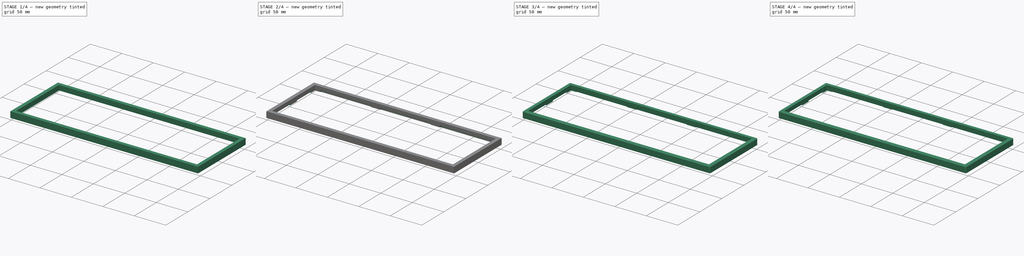
[diagram: build sequence overview — one tinted view per stage of 4, left to right]
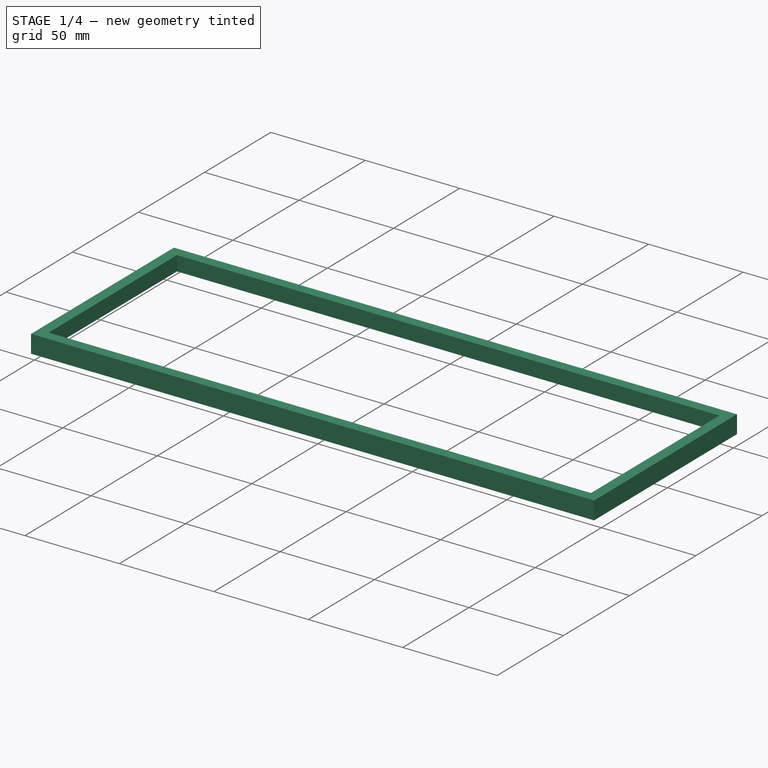
[diagram: stage 1 of 4 — iso view after this stage's code; geometry added in this stage tinted green]
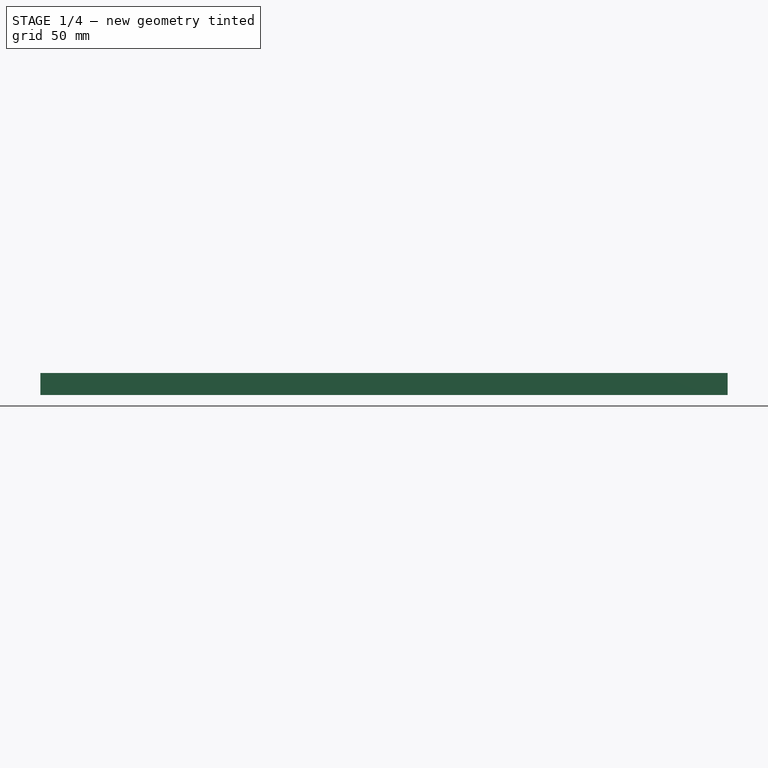
[diagram: stage 1 of 4 — front view after this stage's code; geometry added in this stage tinted green]
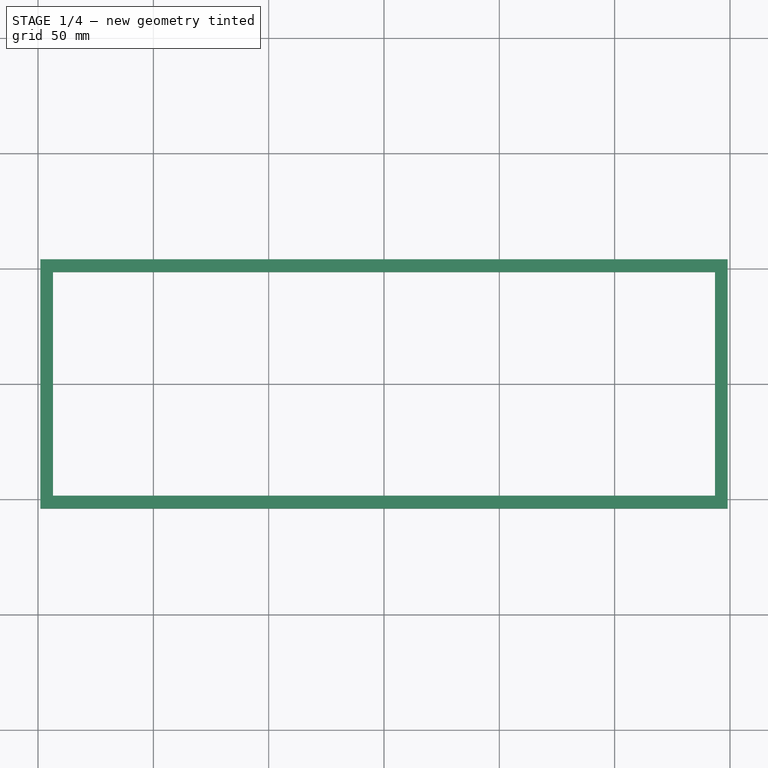
[diagram: stage 1 of 4 — top view after this stage's code; geometry added in this stage tinted green]
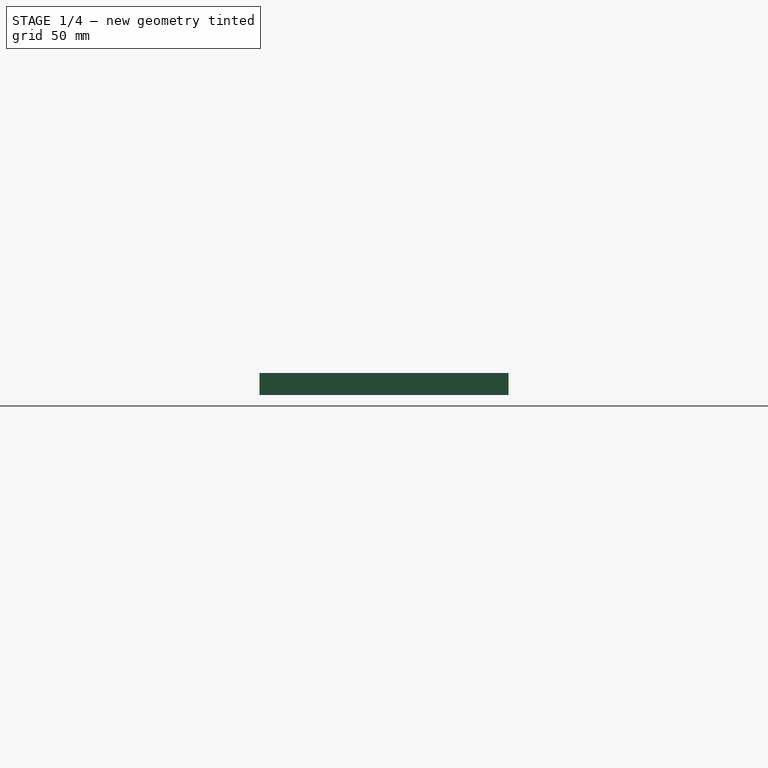
[diagram: stage 1 of 4 — right view after this stage's code; geometry added in this stage tinted green]
FCSTD DOCUMENT  (FreeCAD 0.19R)
Label: jykb60_gasket_top_v4
License: All rights reserved
LicenseURL: http://en.wikipedia.org/wiki/All_rights_reserved
objects: Sketcher::SketchObject×5, PartDesign::Fillet×5, PartDesign::Pocket×3, PartDesign::Pad×1, PartDesign::Body×1
note: 24 computed .brp shape members not serialized (recipe doc carries the construction recipe); baked Part::Feature solids carry a one-line shape summary decoded from their .brp

FEATURE [Sketcher::SketchObject] Sketch
  FullyConstrained = true
  MapMode = 5
  Support = -> [XY_Plane]
  sketch-geometry (8):
    g0: LineSegment StartX=-149.5 StartY=54.5 StartZ=0 EndX=149.5 EndY=54.5 EndZ=0
    g1: LineSegment StartX=149.5 StartY=54.5 StartZ=0 EndX=149.5 EndY=-54.5 EndZ=0
    g2: LineSegment StartX=149.5 StartY=-54.5 StartZ=0 EndX=-149.5 EndY=-54.5 EndZ=0
    g3: LineSegment StartX=-149.5 StartY=-54.5 StartZ=0 EndX=-149.5 EndY=54.5 EndZ=0
    g4: LineSegment StartX=-143.5 StartY=48.5 StartZ=0 EndX=143.5 EndY=48.5 EndZ=0
    g5: LineSegment StartX=143.5 StartY=48.5 StartZ=0 EndX=143.5 EndY=-48.5 EndZ=0
    g6: LineSegment StartX=143.5 StartY=-48.5 StartZ=0 EndX=-143.5 EndY=-48.5 EndZ=0
    g7: LineSegment StartX=-143.5 StartY=-48.5 StartZ=0 EndX=-143.5 EndY=48.5 EndZ=0
  constraints (22):
    c: Coincident(g0,g1)
    c: Coincident(g1,g2)
    c: Coincident(g2,g3)
    c: Coincident(g3,g0)
    c: Horizontal(g0)
    c: Horizontal(g2)
    c: Vertical(g1)
    c: Vertical(g3)
    c: Coincident(g4,g5)
    c: Coincident(g5,g6)
    c: Coincident(g6,g7)
    c: Coincident(g7,g4)
    c: Horizontal(g4)
    c: Horizontal(g6)
    c: Vertical(g5)
    c: Vertical(g7)
    c: DistanceX(g0,g0) = 299
    c: DistanceX(g4,g4) = 287
    c: DistanceY(g5,g5) = 97
    c: DistanceY(g3,g3) = 109
    c: Symmetric(g0,g1,g-1)
    c: Symmetric(g4,g5,g-1)
FEATURE [Sketcher::SketchObject] Sketch001
  FullyConstrained = true
  MapMode = 5
  Support = -> [XY_Plane]
  sketch-geometry (8):
    g0: LineSegment StartX=-149 StartY=54 StartZ=0 EndX=149 EndY=54 EndZ=0
    g1: LineSegment StartX=149 StartY=54 StartZ=0 EndX=149 EndY=-54 EndZ=0
    g2: LineSegment StartX=149 StartY=-54 StartZ=0 EndX=-149 EndY=-54 EndZ=0
    g3: LineSegment StartX=-149 StartY=-54 StartZ=0 EndX=-149 EndY=54 EndZ=0
    g4: LineSegment StartX=-143.5 StartY=48.5 StartZ=0 EndX=143.5 EndY=48.5 EndZ=0
    g5: LineSegment StartX=143.5 StartY=48.5 StartZ=0 EndX=143.5 EndY=-48.5 EndZ=0
    g6: LineSegment StartX=143.5 StartY=-48.5 StartZ=0 EndX=-143.5 EndY=-48.5 EndZ=0
    g7: LineSegment StartX=-143.5 StartY=-48.5 StartZ=0 EndX=-143.5 EndY=48.5 EndZ=0
  constraints (22):
    c: Coincident(g0,g1)
    c: Coincident(g1,g2)
    c: Coincident(g2,g3)
    c: Coincident(g3,g0)
    c: Horizontal(g0)
    c: Horizontal(g2)
    c: Vertical(g1)
    c: Vertical(g3)
    c: Coincident(g4,g5)
    c: Coincident(g5,g6)
    c: Coincident(g6,g7)
    c: Coincident(g7,g4)
    c: Horizontal(g4)
    c: Horizontal(g6)
    c: Vertical(g5)
    c: Vertical(g7)
    c: DistanceX(g4,g4) = 287
    c: DistanceY(g5,g5) = 97
    c: DistanceY(g1,g1) = 108
    c: DistanceX(g0,g0) = 298
    c: Symmetric(g4,g5,g-1)
    c: Symmetric(g0,g1,g-1)
FEATURE [PartDesign::Pad] Pad
  Direction = (1,1,1)
  Length = 9.5
  Length2 = 100
  Profile = -> Sketch001
  Type = 0
FEATURE [Sketcher::SketchObject] Sketch002
  FullyConstrained = true
  MapMode = 5
  Placement = pos=(0,0,0) rot=(1,0,0;3.14159rad)
  Support = -> [Pad]
  sketch-geometry (4):
    g0: LineSegment StartX=-147.5 StartY=52.5 StartZ=0 EndX=147.5 EndY=52.5 EndZ=0
    g1: LineSegment StartX=147.5 StartY=52.5 StartZ=0 EndX=147.5 EndY=-52.5 EndZ=0
    g2: LineSegment StartX=147.5 StartY=-52.5 StartZ=0 EndX=-147.5 EndY=-52.5 EndZ=0
    g3: LineSegment StartX=-147.5 StartY=-52.5 StartZ=0 EndX=-147.5 EndY=52.5 EndZ=0
  constraints (11):
    c: Coincident(g0,g1)
    c: Coincident(g1,g2)
    c: Coincident(g2,g3)
    c: Coincident(g3,g0)
    c: Horizontal(g0)
    c: Horizontal(g2)
    c: Vertical(g1)
    c: Vertical(g3)
    c: DistanceX(g0,g0) = 295
    c: DistanceY(g1,g1) = 105
    c: Symmetric(g0,g1,g-1)
FEATURE [PartDesign::Pocket] Pocket
  BaseFeature = -> Pad
  Length = 1.7
  Length2 = 100
  Profile = -> Sketch002
  Type = 0
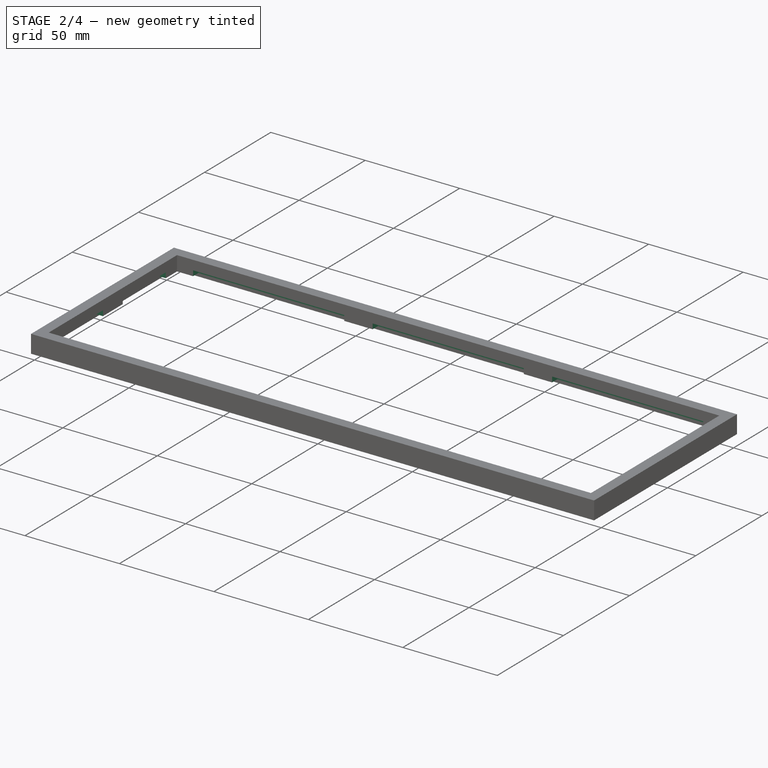
[diagram: stage 2 of 4 — iso view after this stage's code; geometry added in this stage tinted green]
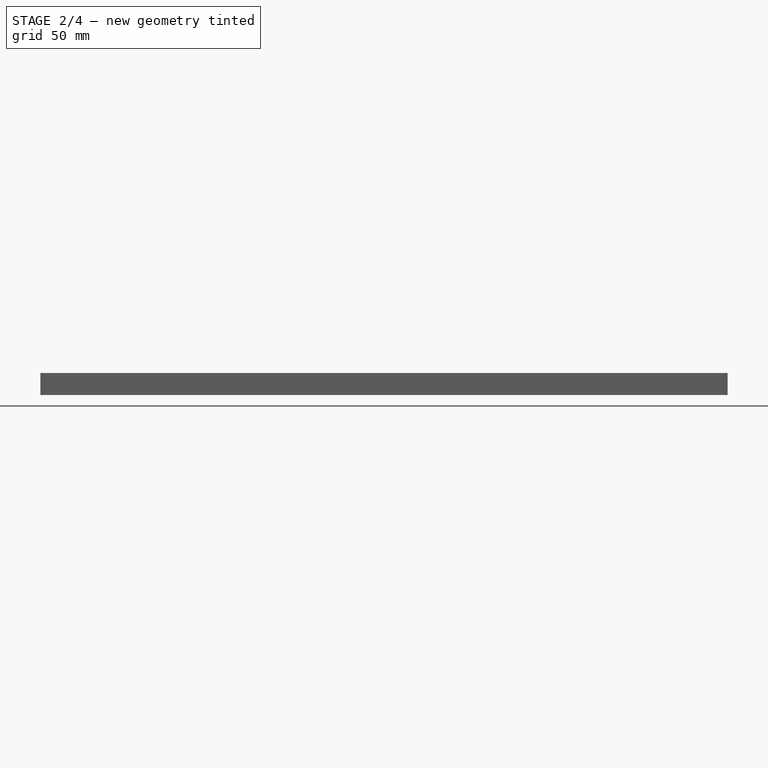
[diagram: stage 2 of 4 — front view after this stage's code; geometry added in this stage tinted green]
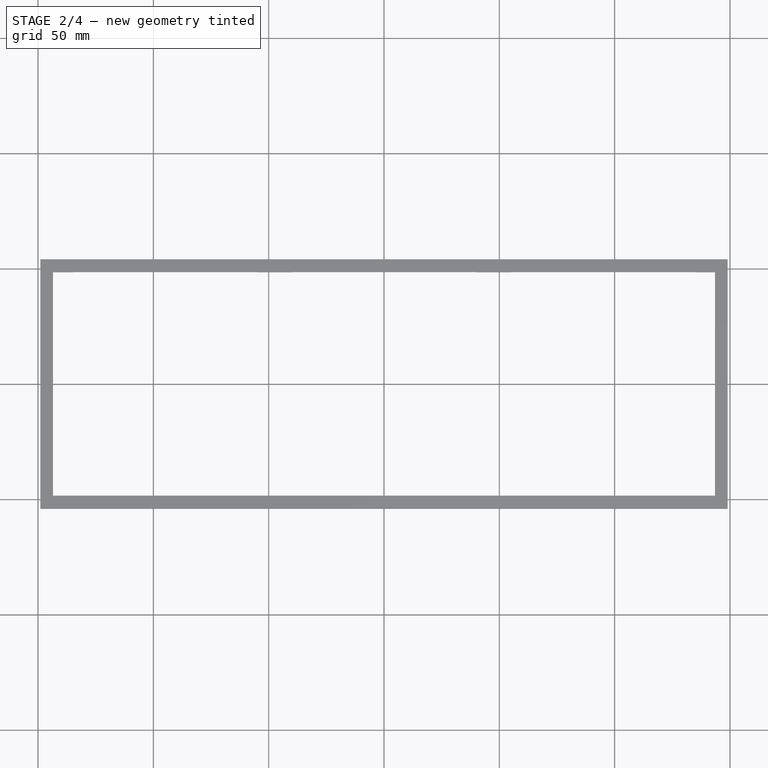
[diagram: stage 2 of 4 — top view after this stage's code; geometry added in this stage tinted green]
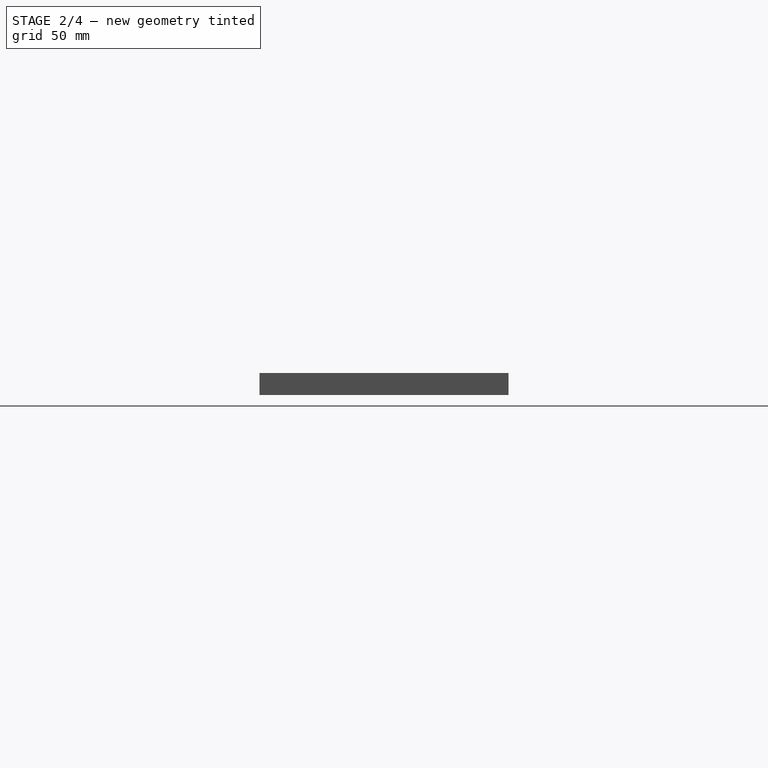
[diagram: stage 2 of 4 — right view after this stage's code; geometry added in this stage tinted green]
FEATURE [Sketcher::SketchObject] Sketch003
  FullyConstrained = true
  MapMode = 5
  Placement = pos=(0,0,1.7) rot=(1,0,0;3.14159rad)
  Support = -> [Pocket]
  sketch-geometry (24):
    g0: LineSegment StartX=-135 StartY=52.5 StartZ=0 EndX=-55 EndY=52.5 EndZ=0
    g1: LineSegment StartX=-55 StartY=52.5 StartZ=0 EndX=-55 EndY=48.5 EndZ=0
    g2: LineSegment StartX=-55 StartY=48.5 StartZ=0 EndX=-135 EndY=48.5 EndZ=0
    g3: LineSegment StartX=-135 StartY=48.5 StartZ=0 EndX=-135 EndY=52.5 EndZ=0
    g4: LineSegment StartX=-40 StartY=52.5 StartZ=0 EndX=40 EndY=52.5 EndZ=0
    g5: LineSegment StartX=40 StartY=52.5 StartZ=0 EndX=40 EndY=48.5 EndZ=0
    g6: LineSegment StartX=40 StartY=48.5 StartZ=0 EndX=-40 EndY=48.5 EndZ=0
    g7: LineSegment StartX=-40 StartY=48.5 StartZ=0 EndX=-40 EndY=52.5 EndZ=0
    g8: LineSegment StartX=55 StartY=52.5 StartZ=0 EndX=135 EndY=52.5 EndZ=0
    g9: LineSegment StartX=135 StartY=52.5 StartZ=0 EndX=135 EndY=48.5 EndZ=0
    g10: LineSegment StartX=135 StartY=48.5 StartZ=0 EndX=55 EndY=48.5 EndZ=0
    g11: LineSegment StartX=55 StartY=48.5 StartZ=0 EndX=55 EndY=52.5 EndZ=0
    g12: LineSegment StartX=-135 StartY=-48.5 StartZ=0 EndX=-55 EndY=-48.5 EndZ=0
    g13: LineSegment StartX=-55 StartY=-48.5 StartZ=0 EndX=-55 EndY=-52.5 EndZ=0
    g14: LineSegment StartX=-55 StartY=-52.5 StartZ=0 EndX=-135 EndY=-52.5 EndZ=0
    g15: LineSegment StartX=-135 StartY=-52.5 StartZ=0 EndX=-135 EndY=-48.5 EndZ=0
    g16: LineSegment StartX=-40 StartY=-48.5 StartZ=0 EndX=40 EndY=-48.5 EndZ=0
    g17: LineSegment StartX=40 StartY=-48.5 StartZ=0 EndX=40 EndY=-52.5 EndZ=0
    g18: LineSegment StartX=40 StartY=-52.5 StartZ=0 EndX=-40 EndY=-52.5 EndZ=0
    g19: LineSegment StartX=-40 StartY=-52.5 StartZ=0 EndX=-40 EndY=-48.5 EndZ=0
    g20: LineSegment StartX=55 StartY=-48.5 StartZ=0 EndX=135 EndY=-48.5 EndZ=0
    g21: LineSegment StartX=135 StartY=-48.5 StartZ=0 EndX=135 EndY=-52.5 EndZ=0
    g22: LineSegment StartX=135 StartY=-52.5 StartZ=0 EndX=55 EndY=-52.5 EndZ=0
    g23: LineSegment StartX=55 StartY=-52.5 StartZ=0 EndX=55 EndY=-48.5 EndZ=0
  constraints (72):
    c: Coincident(g0,g1)
    c: Coincident(g1,g2)
    c: Coincident(g2,g3)
    c: Coincident(g3,g0)
    c: Horizontal(g0)
    c: Horizontal(g2)
    c: Vertical(g1)
    c: Vertical(g3)
    c: Coincident(g4,g5)
    c: Coincident(g5,g6)
    c: Coincident(g6,g7)
    c: Coincident(g7,g4)
    c: Horizontal(g4)
    c: Horizontal(g6)
    c: Vertical(g5)
    c: Vertical(g7)
    c: Coincident(g8,g9)
    c: Coincident(g9,g10)
    c: Coincident(g10,g11)
    c: Coincident(g11,g8)
    c: Horizontal(g8)
    c: Horizontal(g10)
    c: Vertical(g9)
    c: Vertical(g11)
    c: Coincident(g12,g13)
    c: Coincident(g13,g14)
    c: Coincident(g14,g15)
    c: Coincident(g15,g12)
    c: Horizontal(g12)
    c: Horizontal(g14)
    c: Vertical(g13)
    c: Vertical(g15)
    c: Coincident(g16,g17)
    c: Coincident(g17,g18)
    c: Coincident(g18,g19)
    c: Coincident(g19,g16)
    c: Horizontal(g16)
    c: Horizontal(g18)
    c: Vertical(g17)
    c: Vertical(g19)
    c: Coincident(g20,g21)
    c: Coincident(g21,g22)
    c: Coincident(g22,g23)
    c: Coincident(g23,g20)
    c: Horizontal(g20)
    c: Horizontal(g22)
    c: Vertical(g21)
    c: Vertical(g23)
    c: DistanceX(g8,g8) = 80
    c: DistanceX(g4,g4) = 80
    c: DistanceX(g20,g20) = 80
    c: DistanceX(g16,g16) = 80
    c: DistanceX(g12,g12) = 80
    c: DistanceY(g9,g9) = 4
    c: DistanceY(g5,g5) = 4
    c: DistanceY(g21,g21) = 4
    c: DistanceY(g17,g17) = 4
    c: DistanceY(g13,g13) = 4
    c: DistanceY(g1,g1) = 4
    c: DistanceX(g4,g8) = 15
    c: DistanceX(g16,g20) = 15
    c: DistanceX(g12,g16) = 15
    c: DistanceY(g20,g-1) = 48.5
    c: DistanceY(g16,g-1) = 48.5
    c: DistanceY(g12,g-1) = 48.5
    c: DistanceY(g-1,g10) = 48.5
    c: DistanceY(g-1,g6) = 48.5
    c: DistanceX(g-1,g4) = 40
    c: DistanceX(g-1,g17) = 40
    c: DistanceX(g0,g4) = 15
    c: DistanceX(g0,g0) = 80
    c: DistanceY(g-1,g1) = 48.5
FEATURE [PartDesign::Pocket] Pocket001
  BaseFeature = -> Pocket
  Length = 2.8
  Length2 = 100
  Profile = -> Sketch003
  Type = 0
FEATURE [Sketcher::SketchObject] Sketch004
  FullyConstrained = true
  MapMode = 5
  Placement = pos=(0,0,1.7) rot=(1,0,0;3.14159rad)
  Support = -> [Pocket001]
  sketch-geometry (16):
    g0: LineSegment StartX=143.5 StartY=40 StartZ=0 EndX=147.5 EndY=40 EndZ=0
    g1: LineSegment StartX=147.5 StartY=40 StartZ=0 EndX=147.5 EndY=7.5 EndZ=0
    g2: LineSegment StartX=147.5 StartY=7.5 StartZ=0 EndX=143.5 EndY=7.5 EndZ=0
    g3: LineSegment StartX=143.5 StartY=7.5 StartZ=0 EndX=143.5 EndY=40 EndZ=0
    g4: LineSegment StartX=143.5 StartY=-7.5 StartZ=0 EndX=147.5 EndY=-7.5 EndZ=0
    g5: LineSegment StartX=147.5 StartY=-7.5 StartZ=0 EndX=147.5 EndY=-40 EndZ=0
    g6: LineSegment StartX=147.5 StartY=-40 StartZ=0 EndX=143.5 EndY=-40 EndZ=0
    g7: LineSegment StartX=143.5 StartY=-40 StartZ=0 EndX=143.5 EndY=-7.5 EndZ=0
    g8: LineSegment StartX=-147.5 StartY=40 StartZ=0 EndX=-143.5 EndY=40 EndZ=0
    g9: LineSegment StartX=-143.5 StartY=40 StartZ=0 EndX=-143.5 EndY=7.5 EndZ=0
    g10: LineSegment StartX=-143.5 StartY=7.5 StartZ=0 EndX=-147.5 EndY=7.5 EndZ=0
    g11: LineSegment StartX=-147.5 StartY=7.5 StartZ=0 EndX=-147.5 EndY=40 EndZ=0
    g12: LineSegment StartX=-147.5 StartY=-7.5 StartZ=0 EndX=-143.5 EndY=-7.5 EndZ=0
    g13: LineSegment StartX=-143.5 StartY=-7.5 StartZ=0 EndX=-143.5 EndY=-40 EndZ=0
    g14: LineSegment StartX=-143.5 StartY=-40 StartZ=0 EndX=-147.5 EndY=-40 EndZ=0
    g15: LineSegment StartX=-147.5 StartY=-40 StartZ=0 EndX=-147.5 EndY=-7.5 EndZ=0
  constraints (48):
    c: Coincident(g0,g1)
    c: Coincident(g1,g2)
    c: Coincident(g2,g3)
    c: Coincident(g3,g0)
    c: Horizontal(g0)
    c: Horizontal(g2)
    c: Vertical(g1)
    c: Vertical(g3)
    c: Coincident(g4,g5)
    c: Coincident(g5,g6)
    c: Coincident(g6,g7)
    c: Coincident(g7,g4)
    c: Horizontal(g4)
    c: Horizontal(g6)
    c: Vertical(g5)
    c: Vertical(g7)
    c: Coincident(g8,g9)
    c: Coincident(g9,g10)
    c: Coincident(g10,g11)
    c: Coincident(g11,g8)
    c: Horizontal(g8)
    c: Horizontal(g10)
    c: Vertical(g9)
    c: Vertical(g11)
    c: Coincident(g12,g13)
    c: Coincident(g13,g14)
    c: Coincident(g14,g15)
    c: Coincident(g15,g12)
    c: Horizontal(g12)
    c: Horizontal(g14)
    c: Vertical(g13)
    c: Vertical(g15)
    c: DistanceX(g0,g0) = 4
    c: DistanceX(g4,g4) = 4
    c: DistanceX(g8,g8) = 4
    c: DistanceX(g12,g12) = 4
    c: DistanceY(g1,g1) = 32.5
    c: DistanceY(g5,g5) = 32.5
    c: DistanceY(g11,g11) = 32.5
    c: DistanceY(g15,g15) = 32.5
    c: DistanceY(g-1,g2) = 7.5
    c: DistanceY(g4,g-1) = 7.5
    c: DistanceY(g-1,g9) = 7.5
    c: DistanceY(g12,g-1) = 7.5
    c: DistanceX(g-1,g0) = 143.5
    c: DistanceX(g-1,g6) = 143.5
    c: DistanceX(g8,g-1) = 143.5
    c: DistanceX(g13,g-1) = 143.5
FEATURE [PartDesign::Pocket] Pocket002
  BaseFeature = -> Pocket001
  Length = 2.8
  Length2 = 100
  Profile = -> Sketch004
  Type = 0
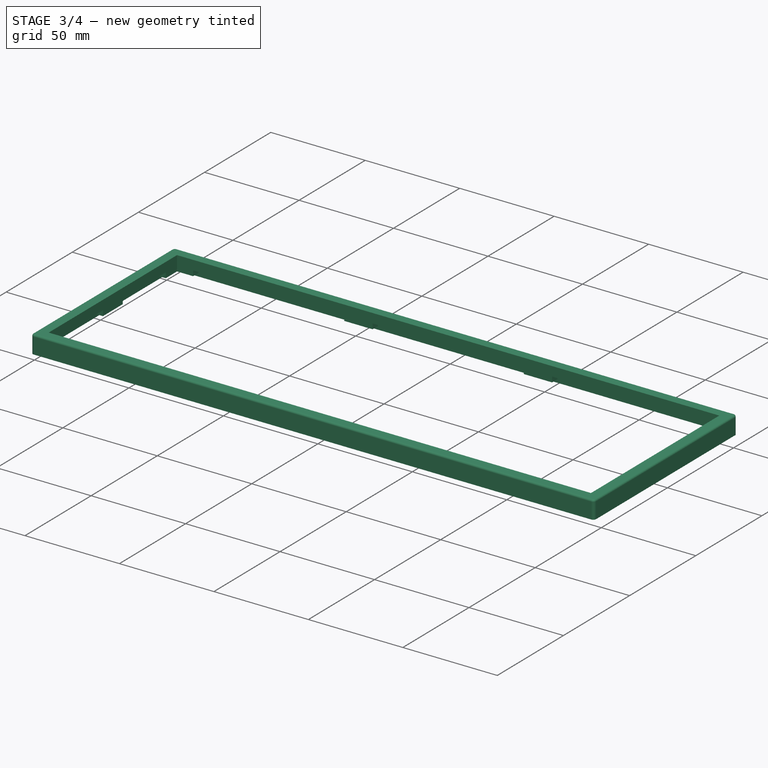
[diagram: stage 3 of 4 — iso view after this stage's code; geometry added in this stage tinted green]
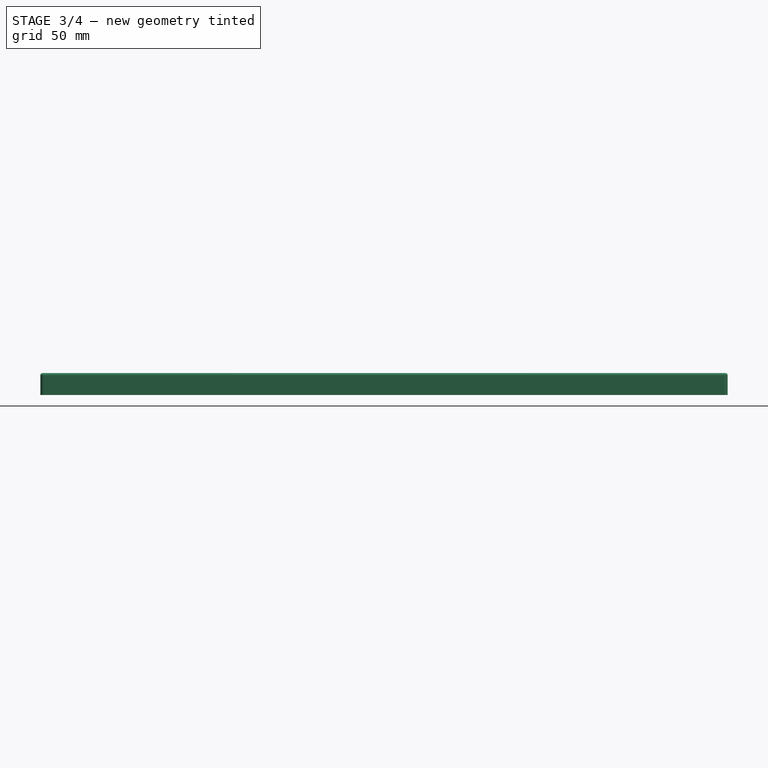
[diagram: stage 3 of 4 — front view after this stage's code; geometry added in this stage tinted green]
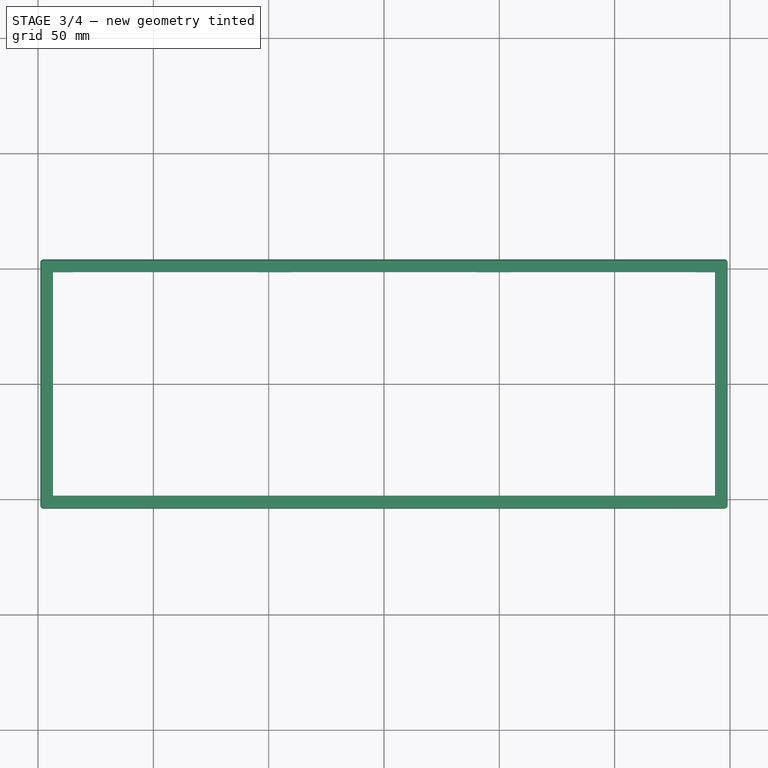
[diagram: stage 3 of 4 — top view after this stage's code; geometry added in this stage tinted green]
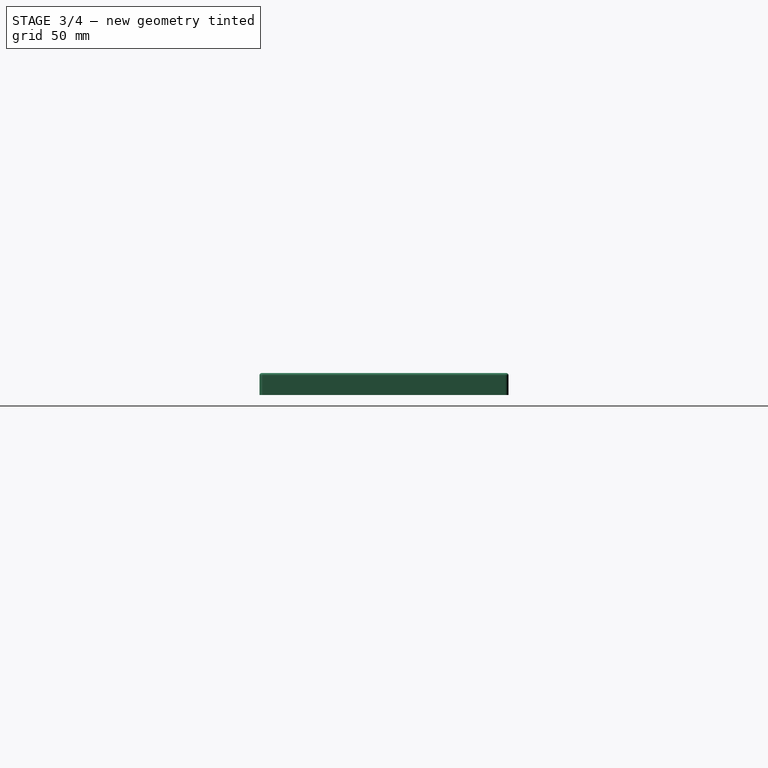
[diagram: stage 3 of 4 — right view after this stage's code; geometry added in this stage tinted green]
FEATURE [PartDesign::Fillet] Fillet
  Base = -> Pocket002 [Edge8,Edge5,Edge1,Edge2]
  BaseFeature = -> Pocket002
  Radius = 1.5
  SupportTransform = false
FEATURE [PartDesign::Fillet] Fillet001
  Base = -> Fillet [Edge4]
  BaseFeature = -> Fillet
  Radius = 1
  SupportTransform = false
FEATURE [PartDesign::Fillet] Fillet002
  Base = -> Fillet001 [Edge45,Edge46,Edge60,Edge52]
  BaseFeature = -> Fillet001
  Radius = 1
  SupportTransform = false
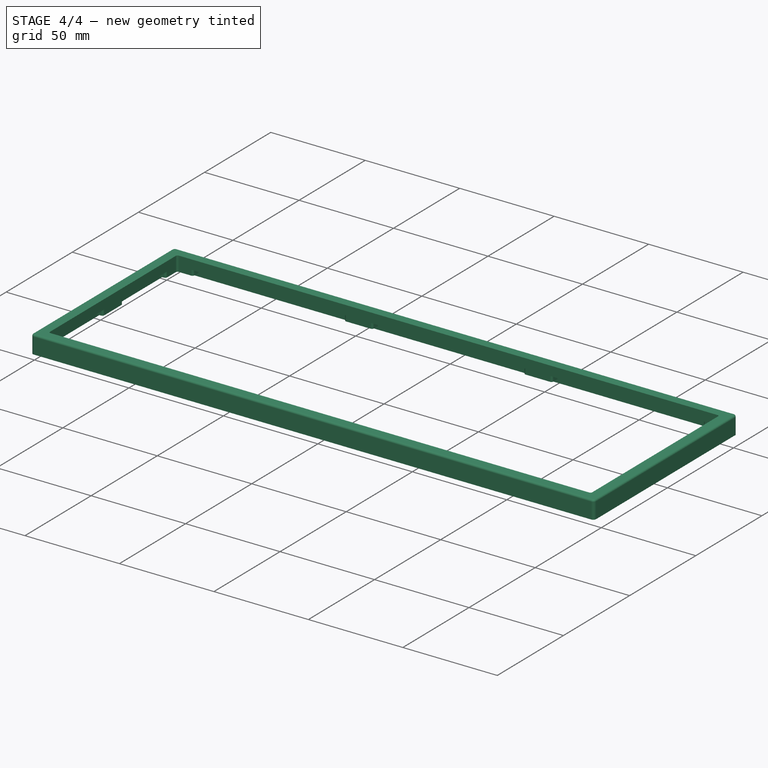
[diagram: stage 4 of 4 — iso view after this stage's code; geometry added in this stage tinted green]
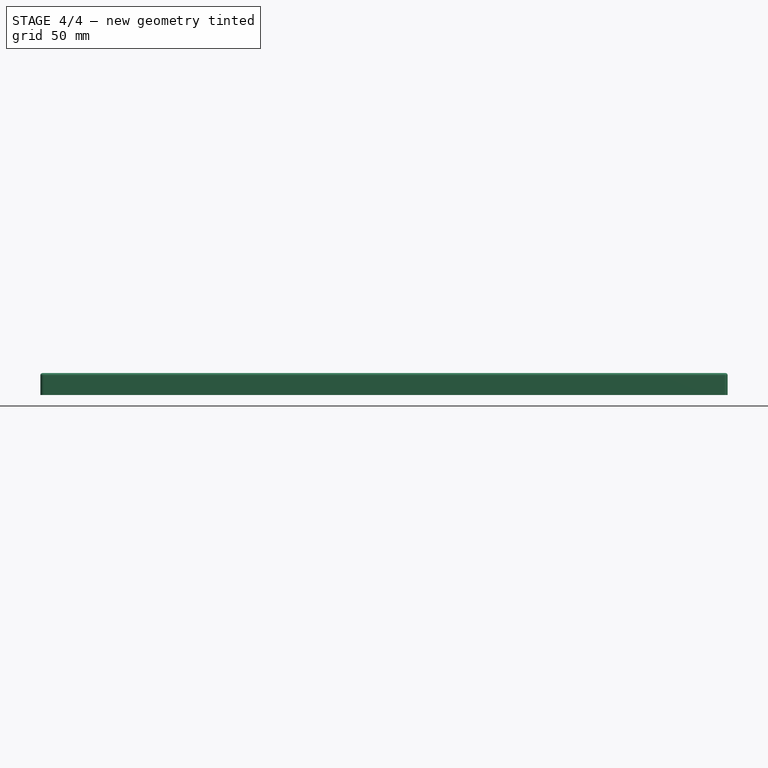
[diagram: stage 4 of 4 — front view after this stage's code; geometry added in this stage tinted green]
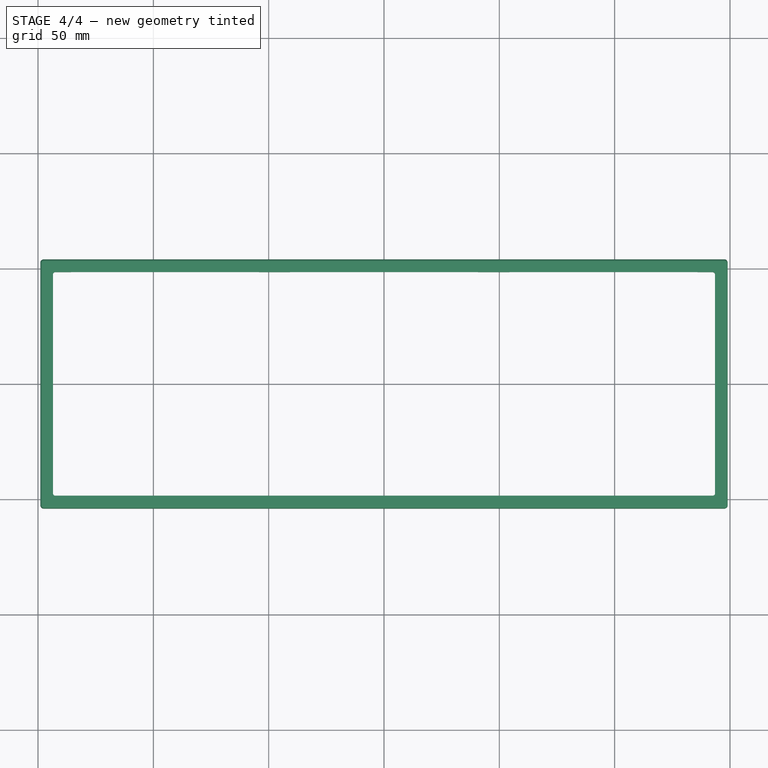
[diagram: stage 4 of 4 — top view after this stage's code; geometry added in this stage tinted green]
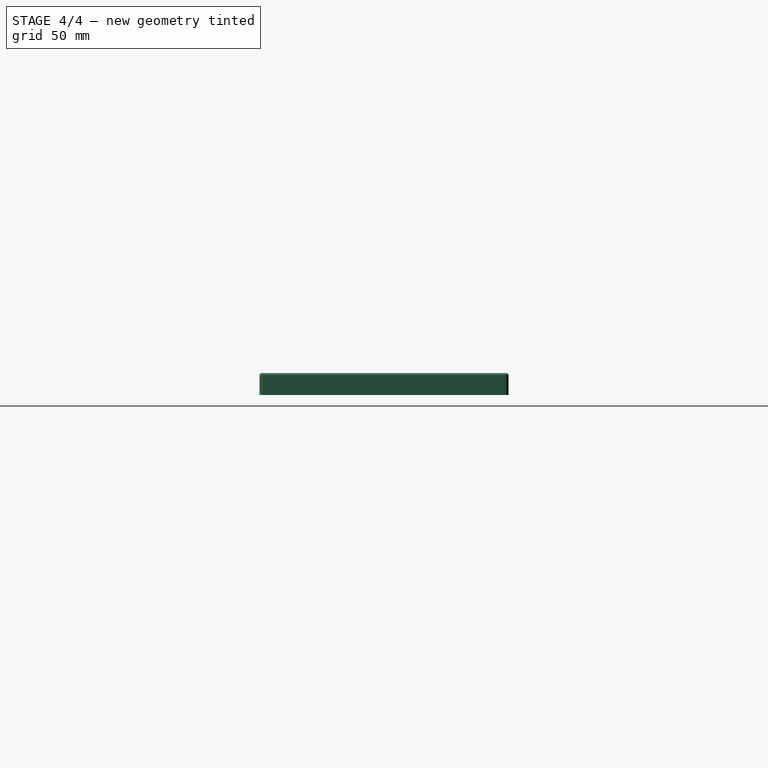
[diagram: stage 4 of 4 — right view after this stage's code; geometry added in this stage tinted green]
FEATURE [PartDesign::Fillet] Fillet003
  Base = -> Fillet002 [Edge187,Edge158,Edge156,Edge155,Edge152,Edge153,Edge149,Edge162,Edge166,Edge191,Edge190,Edge193,Edge173,Edge176,Edge179,Edge167,Edge164,Edge171,Edge178,Edge175]
  BaseFeature = -> Fillet002
  Radius = 1
  SupportTransform = false
FEATURE [PartDesign::Fillet] Fillet004
  Base = -> Fillet003 [Edge48,Edge28,Edge122,Edge24]
  BaseFeature = -> Fillet003
  Radius = 1
  SupportTransform = false
FEATURE [PartDesign::Body] Body
  Group = -> [Sketch,Sketch001,Pad,Sketch002,Pocket,Sketch003,Pocket001,Sketch004,Pocket002,Fillet,Fillet001,Fillet002,Fillet003,Fillet004]
  Origin = -> Origin
  Tip = -> Fillet004
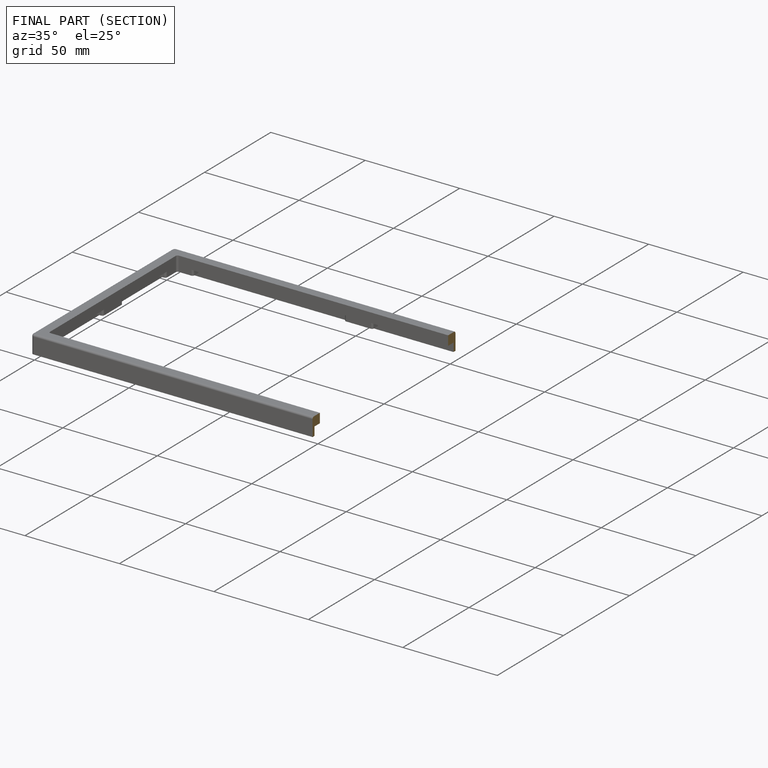
[diagram: finished part — half-section view (interior)]
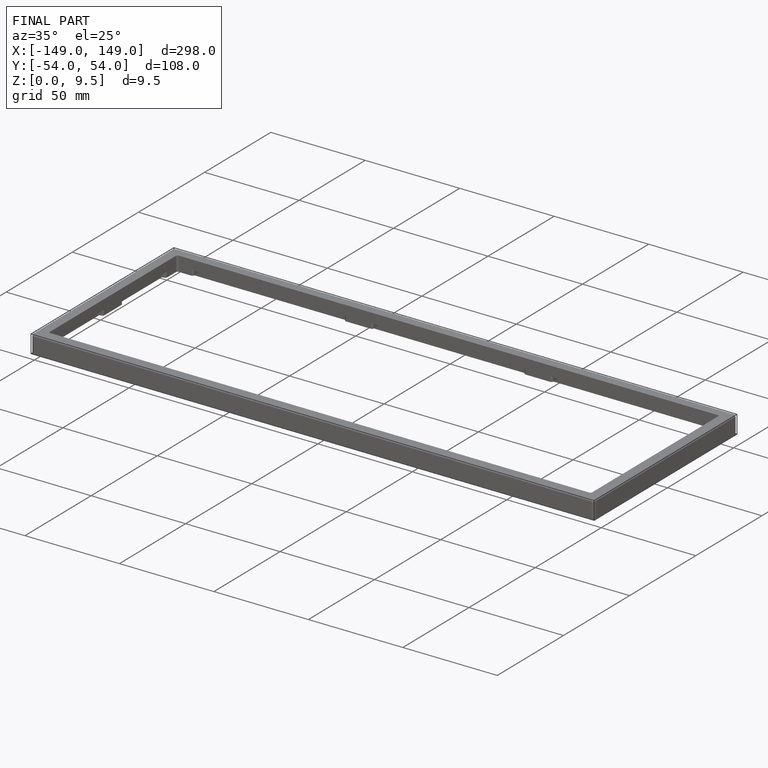
[diagram: finished part — iso view with bounding-box wireframe]
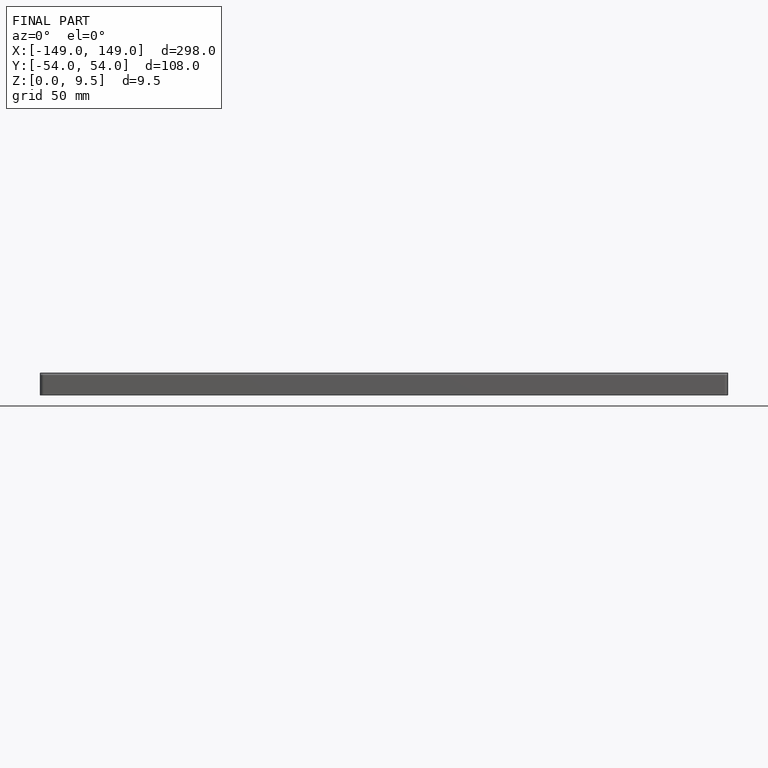
[diagram: finished part — front view with bounding-box wireframe]
